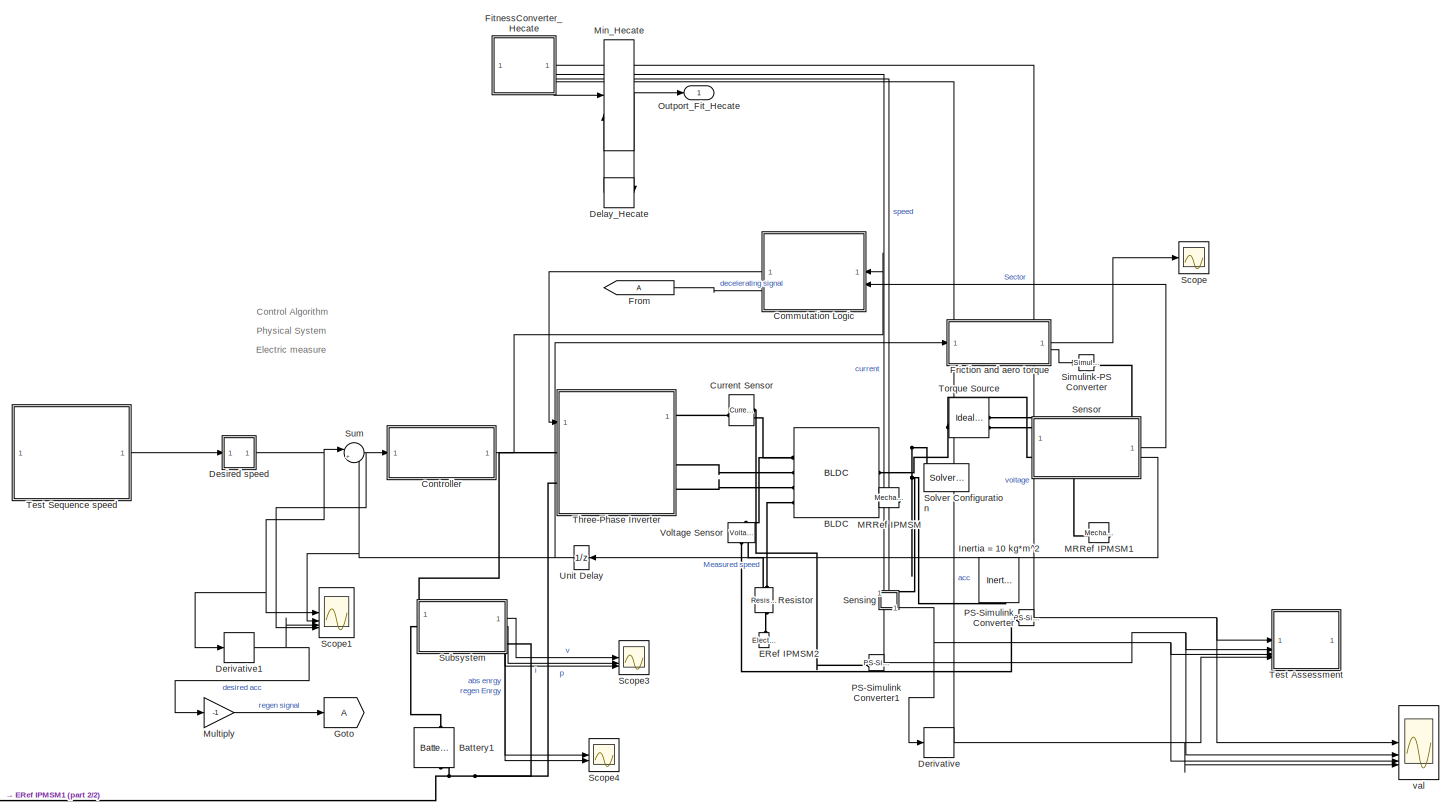
[diagram: root canvas - part 1/2, most of the canvas]
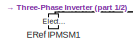
[diagram: root canvas - part 2/2, bottom left region]
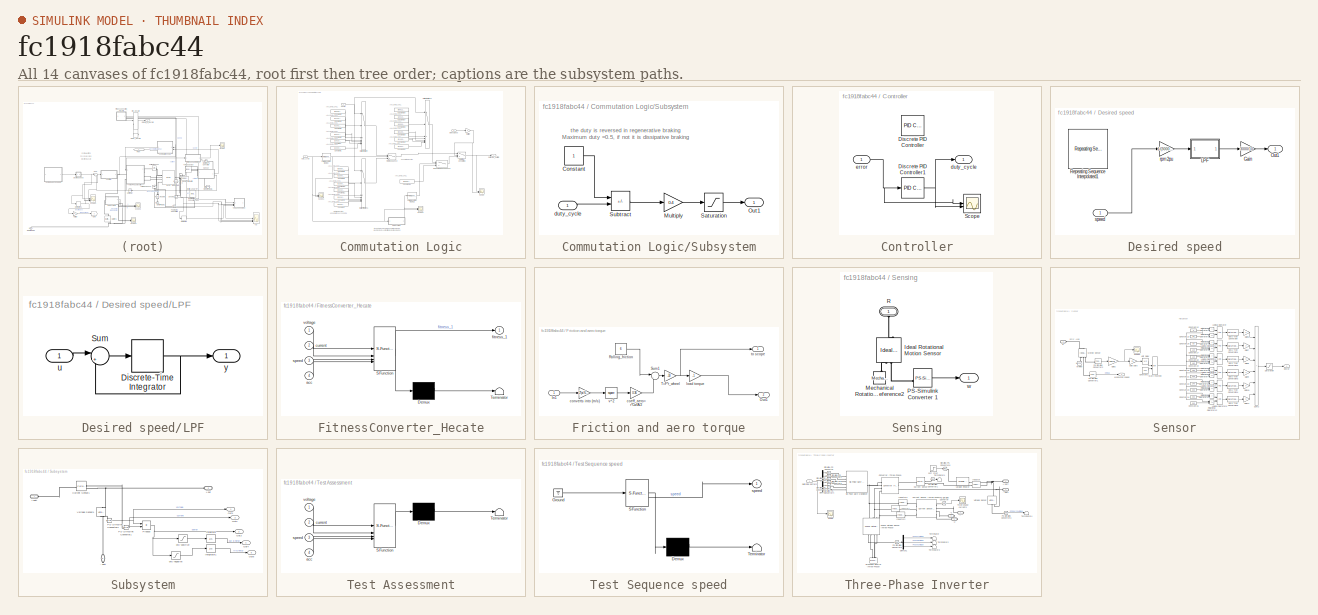
[diagram: thumbnail index - all 14 canvases of the model, root first then tree order]
MODEL slx_fc1918fabc44
KIND model
CONFIG AbsTol = auto
CONFIG EnableMultiTasking = on
CONFIG FixedStep = auto
CONFIG InitFcn = load bldcData
CONFIG MaxStep = Ts_motor
CONFIG MinStep = auto
CONFIG RelTol = 1e-3
CONFIG SampleTimeConstraint = Unconstrained
CONFIG SolverName = odeN
CONFIG StartTime = 0.0
CONFIG StopTime = 35
WORKSPACE source: mxarray member
WORKSPACE encoderResolution = 2000
WORKSPACE hallOffset = '0.5'
WORKSPACE indexOffset = 850
WORKSPACE polePairs = '4'
BLOCK [Scope]  val
  Floating = off
  NumInputPorts = 4
  ScopeSpecificationString = Simulink.scopes.TimeScopeBlockCfg('CurrentConfiguration', extmgr.ConfigurationSet(extmgr.Configuration('Core','General UI',true),extmgr.Configuration('Core','Source UI',true),extmgr.Configuration('Sources','WiredSimulink',true,'DataLoggingVariableName','ScopeData1'),extmgr.Configuration('Visuals','Time Domain',true,'SerializedDisplays',{struct('MinYLimReal','-103.91544','MaxYLimReal','203.31569','...<+1793ch>
BLOCK [Reference] BLDC  REF=ee_lib/Electromechanical/Permanent Magnet/BLDC
  SourceBlock = ee_lib/Electromechanical/Permanent Magnet/BLDC
  SourceType = BLDC
BLOCK [Reference] Battery1  REF=batteryecm_lib/Battery
  LibrarySourceBlock = ee_lib/Sources/Battery
  NameLocation = right
  SourceBlock = batteryecm_lib/Battery
  SourceType = Battery
BLOCK [SubSystem] Commutation Logic
  PortSchema = {"entries":[{"content":{"sides":[{"content":{"connectorIds":["In1","In2"]},"type":"ConnectorPlacement.EquallySpacedRectSide","uuid":"f4e15c6a-e670-49a0-969b-f2d92f91a733"},{"content":{"connectorIds":["Out1","In3"],"side":"RIGHT"},"type":"ConnectorPlacement.EquallySpacedRectSide","uuid":"8577e4eb-4aab-4b1b-b17d-15b328aa4a76"},{"content":{"side":"TOP"},"type":"ConnectorPlacement.EquallySpacedRectSid...<+234ch>
  ShowPortLabels = none
BLOCK [Outport] Commutation Logic/  switching_pattern
  VectorParamsAs1DForOutWhenUnconnected = off
BLOCK [Constant] Commutation Logic/Constant
  Value = [1 0 0 1 0 0]
BLOCK [Constant] Commutation Logic/Constant1
  Value = [1 0 0 0 0 1]
BLOCK [Constant] Commutation Logic/Constant10
  Value = [0 1 0 0 0 0]
BLOCK [Constant] Commutation Logic/Constant11
  Value = [0 0 0 1 0 0]
BLOCK [Constant] Commutation Logic/Constant18
  Value = [0 1 1 0 0 0]
BLOCK [Constant] Commutation Logic/Constant2
  Value = [0 0 1 0 0 1]
BLOCK [Constant] Commutation Logic/Constant25
  Value = [0 1 0 0 1 0]
BLOCK [Constant] Commutation Logic/Constant26
  Value = [0 0 0 1 1 0]
BLOCK [Constant] Commutation Logic/Constant27
  Value = [1 0 0 1  0 0]
BLOCK [Constant] Commutation Logic/Constant28
  Value = [1 0 0 0 0 1]
BLOCK [Constant] Commutation Logic/Constant29
  Value = [0 0 1 0 0 1]
BLOCK [Constant] Commutation Logic/Constant3
  Value = [0 0 0 1 0 0]
BLOCK [Constant] Commutation Logic/Constant34
  Value = [0 0 0 0 0 0]
BLOCK [Constant] Commutation Logic/Constant4
  Value = [0 1 1 0 0 0]
BLOCK [Constant] Commutation Logic/Constant5
  Value = [0 1 0 0 1 0]
BLOCK [Constant] Commutation Logic/Constant6
  Value = [0 0 0 1 1 0]
BLOCK [Constant] Commutation Logic/Constant7
  Value = [0 0 0 0 0 1]
BLOCK [Constant] Commutation Logic/Constant8
  Value = [0 0 0 0 0 1]
BLOCK [Constant] Commutation Logic/Constant9
  Value = [0 1 0 0 0 0]
BLOCK [Gain] Commutation Logic/Multiply
  Gain = -1
BLOCK [MultiPortSwitch] Commutation Logic/Multiport Switch
  InputSameDT = off
  Inputs = 6
  SaturateOnIntegerOverflow = off
BLOCK [MultiPortSwitch] Commutation Logic/Multiport Switch1
  InputSameDT = off
  Inputs = 6
  SaturateOnIntegerOverflow = off
BLOCK [MultiPortSwitch] Commutation Logic/Multiport Switch4
  InputSameDT = off
  Inputs = 6
  SaturateOnIntegerOverflow = off
BLOCK [Reference] Commutation Logic/PWM Generator (DC-DC)  REF=spsPWMGeneratorDCDCLib/PWM Generator
(DC-DC)
  LibrarySourceBlock = sps_lib/Power Electronics/Power Electronics Control/PWM Generator\n(DC-DC)
  SourceBlock = spsPWMGeneratorDCDCLib/PWM Generator\n(DC-DC)
  SourceType = PWM Generator (DC-DC)
BLOCK [Reference] Commutation Logic/PWM Generator (DC-DC)1  REF=spsPWMGeneratorDCDCLib/PWM Generator
(DC-DC)
  LibrarySourceBlock = sps_lib/Power Electronics/Power Electronics Control/PWM Generator\n(DC-DC)
  SourceBlock = spsPWMGeneratorDCDCLib/PWM Generator\n(DC-DC)
  SourceType = PWM Generator (DC-DC)
BLOCK [Scope] Commutation Logic/Scope
  Floating = off
  NumInputPorts = 2
  ScopeSpecificationString = Simulink.scopes.TimeScopeBlockCfg('CurrentConfiguration', extmgr.ConfigurationSet(extmgr.Configuration('Core','General UI',true),extmgr.Configuration('Core','Source UI',true),extmgr.Configuration('Sources','WiredSimulink',true,'DataLoggingVariableName','ScopeData2'),extmgr.Configuration('Visuals','Time Domain',true,'SerializedDisplays',{struct('MinYLimReal','-1.00237','MaxYLimReal','23.74188','YLa...<+1792ch>
BLOCK [Scope] Commutation Logic/Scope1
  Floating = off
  NumInputPorts = 2
  ScopeSpecificationString = Simulink.scopes.TimeScopeBlockCfg('CurrentConfiguration', extmgr.ConfigurationSet(extmgr.Configuration('Core','General UI',true),extmgr.Configuration('Core','Source UI',true),extmgr.Configuration('Sources','WiredSimulink',true,'DataLoggingVariableName','ScopeData4'),extmgr.Configuration('Visuals','Time Domain',true,'SerializedDisplays',{struct('MinYLimReal','-0.125','MaxYLimReal','1.125','YLabelRe...<+1507ch>
BLOCK [Scope] Commutation Logic/Scope2
  Floating = off
  NumInputPorts = 2
  ScopeSpecificationString = Simulink.scopes.TimeScopeBlockCfg('CurrentConfiguration', extmgr.ConfigurationSet(extmgr.Configuration('Core','General UI',true),extmgr.Configuration('Core','Source UI',true),extmgr.Configuration('Sources','WiredSimulink',true,'DataLoggingVariableName','ScopeData5'),extmgr.Configuration('Visuals','Time Domain',true,'SerializedDisplays',{struct('MinYLimReal','-0.125','MaxYLimReal','1.125','YLabelRe...<+1440ch>
BLOCK [SubSystem] Commutation Logic/Subsystem
BLOCK [Constant] Commutation Logic/Subsystem/Constant
BLOCK [Gain] Commutation Logic/Subsystem/Multiply
  Gain = 0.4
BLOCK [Outport] Commutation Logic/Subsystem/Out1
BLOCK [Saturate] Commutation Logic/Subsystem/Saturation
  LowerLimit = 0.1
BLOCK [Sum] Commutation Logic/Subsystem/Subtract
  IconShape = rectangular
  Inputs = +-
BLOCK [Inport] Commutation Logic/Subsystem/duty_cycle
BLOCK [Inport] Commutation Logic/brake signal
  Port = 3
BLOCK [Inport] Commutation Logic/duty_cycle
BLOCK [Switch] Commutation Logic/motor sequence
  Criteria = u2 > Threshold
  InputSameDT = off
  SaturateOnIntegerOverflow = off
  Threshold = 0.5
BLOCK [Switch] Commutation Logic/motoring // generating
  InputSameDT = off
  SaturateOnIntegerOverflow = off
BLOCK [Switch] Commutation Logic/regen braking sequence
  Criteria = u2 > Threshold
  InputSameDT = off
  SaturateOnIntegerOverflow = off
  Threshold = 0.5
BLOCK [Inport] Commutation Logic/sector
  NameLocation = top
  Port = 2
BLOCK [SubSystem] Controller
BLOCK [Reference] Controller/Discrete PID Controller  REF=slpidlib/PID Controller
  Commented = on
  SourceBlock = slpidlib/PID Controller
  SourceType = PID 1dof
BLOCK [Reference] Controller/Discrete PID Controller1  REF=slpidlib/PID Controller
  LibrarySourceBlock = simulink/Discrete/Discrete PID Controller
  SourceBlock = slpidlib/PID Controller
  SourceType = PID 1dof
BLOCK [Scope] Controller/Scope
  Floating = off
  NumInputPorts = 2
  ScopeSpecificationString = Simulink.scopes.TimeScopeBlockCfg('CurrentConfiguration', extmgr.ConfigurationSet(extmgr.Configuration('Core','General UI',true),extmgr.Configuration('Core','Source UI',true),extmgr.Configuration('Sources','WiredSimulink',true,'DataLoggingVariableName','ScopeData3'),extmgr.Configuration('Visuals','Time Domain',true),extmgr.Configuration('Tools','Plot Navigation',true),extmgr.Configuration('Tools',...<+40ch>
BLOCK [Outport] Controller/duty_cycle
BLOCK [Inport] Controller/error
BLOCK [Reference] Current Sensor  REF=fl_lib/Electrical/Electrical Sensors/Current Sensor
  SourceBlock = fl_lib/Electrical/Electrical Sensors/Current Sensor
  SourceType = Current Sensor
BLOCK [Delay] Delay_Hecate
  DelayLength = 1
  InitialCondition = Inf
  InputPortMap = u0
BLOCK [Derivative] Derivative
BLOCK [Derivative] Derivative1
BLOCK [SubSystem] Desired speed
  ShowPortLabels = none
BLOCK [Gain] Desired speed/Gain
  Gain = 3000/10
BLOCK [SubSystem] Desired speed/LPF
BLOCK [DiscreteIntegrator] Desired speed/LPF/Discrete-Time Integrator
  ICPrevOutput = DiscIntNeverNeededParam
  ICPrevScaledInput = DiscIntNeverNeededParam
  InitialConditionSetting = Auto
  SampleTime = Ts_motor
  gainval = 20
BLOCK [Sum] Desired speed/LPF/Sum
  Inputs = |+-
BLOCK [Inport] Desired speed/LPF/u
BLOCK [Outport] Desired speed/LPF/y
BLOCK [Outport] Desired speed/Out1
BLOCK [Reference] Desired speed/Repeating Sequence Interpolated1  REF=simulink/Sources/Repeating
Sequence
Interpolated
  SourceBlock = simulink/Sources/Repeating\nSequence\nInterpolated
  SourceType = Repeating Sequence Interpolated
BLOCK [Gain] Desired speed/rpm2pu
  Gain = 1/(3000/10)
  OutDataTypeStr = Inherit: Same as input
  RndMeth = Simplest
BLOCK [Inport] Desired speed/speed
BLOCK [Reference] ERef IPMSM1  REF=fl_lib/Electrical/Electrical Elements/Electrical Reference
  NameLocation = right
  SourceBlock = fl_lib/Electrical/Electrical Elements/Electrical Reference
  SourceType = Electrical Reference
BLOCK [Reference] ERef IPMSM2  REF=fl_lib/Electrical/Electrical Elements/Electrical Reference
  NameLocation = right
  SourceBlock = fl_lib/Electrical/Electrical Elements/Electrical Reference
  SourceType = Electrical Reference
BLOCK [SubSystem] FitnessConverter_Hecate
  ErrorFcn = Stateflow.Translate.translate
  PermitHierarchicalResolution = ExplicitOnly
  SFBlockType = Chart
  TreatAsAtomicUnit = on
BLOCK [Demux] FitnessConverter_Hecate/ Demux 
  Outputs = 1
BLOCK [S-Function] FitnessConverter_Hecate/ SFunction 
  EnableBusSupport = on
  FunctionName = sf_sfun
  Parameters = Hecate_speed
  PortCounts = [4 2]
  SFcnIsStateOwnerBlock = off
  SFunctionDeploymentMode = off
  Tag = Stateflow S-Function 3
BLOCK [Terminator] FitnessConverter_Hecate/ Terminator 
BLOCK [Inport] FitnessConverter_Hecate/acc
  Port = 4
BLOCK [Inport] FitnessConverter_Hecate/current
  Port = 2
BLOCK [Outport] FitnessConverter_Hecate/fitness_1
BLOCK [Inport] FitnessConverter_Hecate/speed
  Port = 3
BLOCK [Inport] FitnessConverter_Hecate/voltage
BLOCK [SubSystem] Friction and aero torque
BLOCK [Inport] Friction and aero torque/In1
BLOCK [Outport] Friction and aero torque/Out1
  Port = 2
BLOCK [Constant] Friction and aero torque/Rolling_friction
  Value = 6
BLOCK [Sum] Friction and aero torque/Sum1
  Inputs = |++
BLOCK [Gain] Friction and aero torque/T=F*r_wheel
  Gain = .33
BLOCK [Gain] Friction and aero torque/coeff_aero= r*Cw*A//2
  Gain = 0.36
BLOCK [Gain] Friction and aero torque/converts into (m//s)
  Gain = (2*pi/60) * 0.33
BLOCK [Gain] Friction and aero torque/load torque
  Gain = -1
BLOCK [Outport] Friction and aero torque/to scope
BLOCK [Math] Friction and aero torque/v^2
  Operator = square
BLOCK [From] From
BLOCK [Goto] Goto
BLOCK [Reference] Inertia = 10 kg*m^2  REF=fl_lib/Mechanical/Rotational Elements/Inertia
  NameLocation = right
  SourceBlock = fl_lib/Mechanical/Rotational Elements/Inertia
  SourceType = Inertia
BLOCK [Reference] MRRef IPMSM  REF=fl_lib/Mechanical/Rotational Elements/Mechanical
Rotational Reference
  NameLocation = top
  SourceBlock = fl_lib/Mechanical/Rotational Elements/Mechanical\nRotational Reference
  SourceType = Mechanical\nRotational Reference
BLOCK [Reference] MRRef IPMSM1  REF=fl_lib/Mechanical/Rotational Elements/Mechanical
Rotational Reference
  NameLocation = top
  SourceBlock = fl_lib/Mechanical/Rotational Elements/Mechanical\nRotational Reference
  SourceType = Mechanical\nRotational Reference
BLOCK [MinMax] Min_Hecate
  Inputs = 2
BLOCK [Gain] Multiply
  Gain = -1
BLOCK [Outport] Outport_Fit_Hecate
BLOCK [Reference] PS-Simulink Converter  REF=nesl_utility/PS-Simulink
Converter
  SourceBlock = nesl_utility/PS-Simulink\nConverter
  SourceType = PS-Simulink\nConverter
BLOCK [Reference] PS-Simulink Converter1  REF=nesl_utility/PS-Simulink
Converter
  SourceBlock = nesl_utility/PS-Simulink\nConverter
  SourceType = PS-Simulink\nConverter
BLOCK [Reference] Resistor  REF=fl_lib/Electrical/Electrical Elements/Resistor
  NameLocation = left
  SourceBlock = fl_lib/Electrical/Electrical Elements/Resistor
  SourceType = Resistor
BLOCK [Scope] Scope
  Floating = off
  NumInputPorts = 1
  ScopeSpecificationString = Simulink.scopes.TimeScopeBlockCfg('CurrentConfiguration', extmgr.ConfigurationSet(extmgr.Configuration('Core','General UI',true),extmgr.Configuration('Core','Source UI',true),extmgr.Configuration('Sources','WiredSimulink',true,'DataLoggingVariableName','ScopeData1'),extmgr.Configuration('Visuals','Time Domain',true,'SerializedDisplays',{struct('MinYLimReal','1.45173','MaxYLimReal','6.73443','YLabe...<+1502ch>
BLOCK [Scope] Scope1
  Floating = off
  NumInputPorts = 4
  ScopeSpecificationString = Simulink.scopes.TimeScopeBlockCfg('CurrentConfiguration', extmgr.ConfigurationSet(extmgr.Configuration('Core','General UI',true),extmgr.Configuration('Core','Source UI',true),extmgr.Configuration('Sources','WiredSimulink',true,'DataLoggingVariableName','ScopeData4'),extmgr.Configuration('Visuals','Time Domain',true,'SerializedDisplays',{struct('MinYLimReal','-37.22419','MaxYLimReal','232.51773','Y...<+1669ch>
BLOCK [Scope] Scope3
  Floating = off
  NumInputPorts = 3
  ScopeSpecificationString = Simulink.scopes.TimeScopeBlockCfg('CurrentConfiguration', extmgr.ConfigurationSet(extmgr.Configuration('Core','General UI',true,'FigureColor',[0 0 0]),extmgr.Configuration('Core','Source UI',true),extmgr.Configuration('Sources','WiredSimulink',true,'DataLoggingVariableName','ScopeData2'),extmgr.Configuration('Visuals','Time Domain',true,'SerializedDisplays',{struct('MinYLimReal','-97.52249','MaxYL...<+1627ch>
BLOCK [Scope] Scope4
  Floating = off
  NumInputPorts = 2
  ScopeSpecificationString = Simulink.scopes.TimeScopeBlockCfg('CurrentConfiguration', extmgr.ConfigurationSet(extmgr.Configuration('Core','General UI',true),extmgr.Configuration('Core','Source UI',true),extmgr.Configuration('Sources','WiredSimulink',true,'DataLoggingVariableName','ScopeData3'),extmgr.Configuration('Visuals','Time Domain',true,'SerializedDisplays',{struct('MinYLimReal','-3238.99196','MaxYLimReal','11958.31271...<+1484ch>
BLOCK [SubSystem] Sensing
  NameLocation = left
BLOCK [Reference] Sensing/Ideal Rotational Motion Sensor  REF=fl_lib/Mechanical/Mechanical Sensors/Ideal Rotational
Motion Sensor
  NameLocation = right
  SourceBlock = fl_lib/Mechanical/Mechanical Sensors/Ideal Rotational\nMotion Sensor
  SourceType = Ideal Rotational\nMotion Sensor
BLOCK [Reference] Sensing/Mechanical Rotational Reference2  REF=fl_lib/Mechanical/Rotational Elements/Mechanical
Rotational Reference
  NameLocation = left
  SourceBlock = fl_lib/Mechanical/Rotational Elements/Mechanical\nRotational Reference
  SourceType = Mechanical\nRotational Reference
BLOCK [Reference] Sensing/PS-Simulink Converter 1  REF=nesl_utility/PS-Simulink
Converter
  SourceBlock = nesl_utility/PS-Simulink\nConverter
  SourceType = PS-Simulink\nConverter
BLOCK [PMIOPort] Sensing/R
  NameLocation = right
  Side = Left
BLOCK [Outport] Sensing/w
  VectorParamsAs1DForOutWhenUnconnected = off
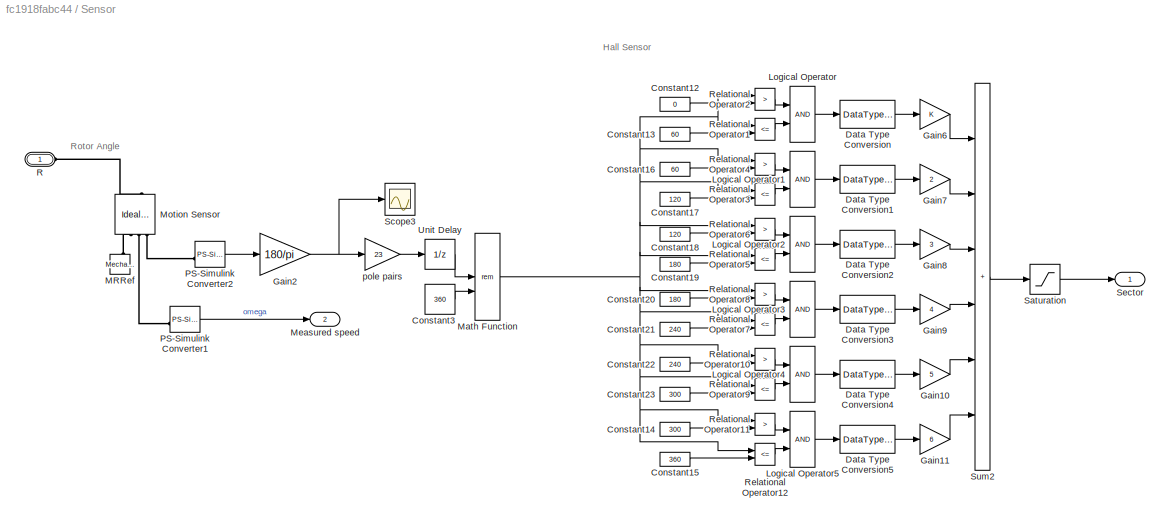
BLOCK [SubSystem] Sensor
BLOCK [Constant] Sensor/Constant12
  Value = 0
BLOCK [Constant] Sensor/Constant13
  Value = 60
BLOCK [Constant] Sensor/Constant14
  Value = 300
BLOCK [Constant] Sensor/Constant15
  Value = 360
BLOCK [Constant] Sensor/Constant16
  Value = 60
BLOCK [Constant] Sensor/Constant17
  Value = 120
BLOCK [Constant] Sensor/Constant18
  Value = 120
BLOCK [Constant] Sensor/Constant19
  Value = 180
BLOCK [Constant] Sensor/Constant20
  Value = 180
BLOCK [Constant] Sensor/Constant21
  Value = 240
BLOCK [Constant] Sensor/Constant22
  Value = 240
BLOCK [Constant] Sensor/Constant23
  Value = 300
BLOCK [Constant] Sensor/Constant3
  Value = 360
BLOCK [DataTypeConversion] Sensor/Data Type Conversion
BLOCK [DataTypeConversion] Sensor/Data Type Conversion1
BLOCK [DataTypeConversion] Sensor/Data Type Conversion2
BLOCK [DataTypeConversion] Sensor/Data Type Conversion3
BLOCK [DataTypeConversion] Sensor/Data Type Conversion4
BLOCK [DataTypeConversion] Sensor/Data Type Conversion5
BLOCK [Gain] Sensor/Gain10
  Gain = 5
  OutDataTypeStr = Inherit: Same as input
  ParamDataTypeStr = Inherit: Same as input
  SaturateOnIntegerOverflow = on
BLOCK [Gain] Sensor/Gain11
  Gain = 6
  OutDataTypeStr = Inherit: Same as input
  ParamDataTypeStr = Inherit: Same as input
  SaturateOnIntegerOverflow = on
BLOCK [Gain] Sensor/Gain2
  Gain = 180/pi
BLOCK [Gain] Sensor/Gain6
  OutDataTypeStr = Inherit: Same as input
  ParamDataTypeStr = Inherit: Same as input
  SaturateOnIntegerOverflow = on
BLOCK [Gain] Sensor/Gain7
  Gain = 2
  OutDataTypeStr = Inherit: Same as input
  ParamDataTypeStr = Inherit: Same as input
  SaturateOnIntegerOverflow = on
BLOCK [Gain] Sensor/Gain8
  Gain = 3
  OutDataTypeStr = Inherit: Same as input
  ParamDataTypeStr = Inherit: Same as input
  SaturateOnIntegerOverflow = on
BLOCK [Gain] Sensor/Gain9
  Gain = 4
  OutDataTypeStr = Inherit: Same as input
  ParamDataTypeStr = Inherit: Same as input
  SaturateOnIntegerOverflow = on
BLOCK [Logic] Sensor/Logical Operator
BLOCK [Logic] Sensor/Logical Operator1
BLOCK [Logic] Sensor/Logical Operator2
BLOCK [Logic] Sensor/Logical Operator3
BLOCK [Logic] Sensor/Logical Operator4
BLOCK [Logic] Sensor/Logical Operator5
BLOCK [Reference] Sensor/MRRef  REF=fl_lib/Mechanical/Rotational Elements/Mechanical
Rotational Reference
  NameLocation = left
  SourceBlock = fl_lib/Mechanical/Rotational Elements/Mechanical\nRotational Reference
  SourceType = Mechanical\nRotational Reference
BLOCK [Math] Sensor/Math Function
  Operator = rem
  SignedPower = on
BLOCK [Outport] Sensor/Measured speed
  Port = 2
BLOCK [Reference] Sensor/Motion Sensor  REF=fl_lib/Mechanical/Mechanical Sensors/Ideal Rotational
Motion Sensor
  NameLocation = right
  SourceBlock = fl_lib/Mechanical/Mechanical Sensors/Ideal Rotational\nMotion Sensor
  SourceType = Ideal Rotational\nMotion Sensor
BLOCK [Reference] Sensor/PS-Simulink Converter1  REF=nesl_utility/PS-Simulink
Converter
  SourceBlock = nesl_utility/PS-Simulink\nConverter
  SourceType = PS-Simulink\nConverter
BLOCK [Reference] Sensor/PS-Simulink Converter2  REF=nesl_utility/PS-Simulink
Converter
  SourceBlock = nesl_utility/PS-Simulink\nConverter
  SourceType = PS-Simulink\nConverter
BLOCK [PMIOPort] Sensor/R
  NameLocation = top
  Side = Left
BLOCK [RelationalOperator] Sensor/Relational Operator1
  Operator = <=
BLOCK [RelationalOperator] Sensor/Relational Operator10
  Operator = >
BLOCK [RelationalOperator] Sensor/Relational Operator11
  Operator = >
BLOCK [RelationalOperator] Sensor/Relational Operator12
  Operator = <=
BLOCK [RelationalOperator] Sensor/Relational Operator2
  Operator = >
BLOCK [RelationalOperator] Sensor/Relational Operator3
  Operator = <=
BLOCK [RelationalOperator] Sensor/Relational Operator4
  Operator = >
BLOCK [RelationalOperator] Sensor/Relational Operator5
  Operator = <=
BLOCK [RelationalOperator] Sensor/Relational Operator6
  Operator = >
BLOCK [RelationalOperator] Sensor/Relational Operator7
  Operator = <=
BLOCK [RelationalOperator] Sensor/Relational Operator8
  Operator = >
BLOCK [RelationalOperator] Sensor/Relational Operator9
  Operator = <=
BLOCK [Saturate] Sensor/Saturation
  LowerLimit = 1
  UpperLimit = 6
BLOCK [Scope] Sensor/Scope3
  Floating = off
  NumInputPorts = 1
  ScopeSpecificationString = Simulink.scopes.TimeScopeBlockCfg('CurrentConfiguration', extmgr.ConfigurationSet(extmgr.Configuration('Core','General UI',true),extmgr.Configuration('Core','Source UI',true),extmgr.Configuration('Sources','WiredSimulink',true,'DataLoggingVariableName','ScopeData1','DataLogging',true,'DataLoggingSaveFormat','StructureWithTime'),extmgr.Configuration('Visuals','Time Domain',true,'SerializedDisplays'...<+1517ch>
BLOCK [Outport] Sensor/Sector
  NameLocation = top
BLOCK [Sum] Sensor/Sum2
  IconShape = rectangular
  InputSameDT = on
  Inputs = ++++++
  OutDataTypeStr = Inherit: Same as first input
  SaturateOnIntegerOverflow = on
BLOCK [UnitDelay] Sensor/Unit Delay
  HasFrameUpgradeWarning = on
  SampleTime = Ts_motor
BLOCK [Gain] Sensor/pole pairs
  Gain = 23
  NameLocation = top
BLOCK [Reference] Simulink-PS Converter  REF=nesl_utility/Simulink-PS
Converter
  SourceBlock = nesl_utility/Simulink-PS\nConverter
  SourceType = Simulink-PS\nConverter
BLOCK [Reference] Solver Configuration  REF=nesl_utility/Solver
Configuration
  NameLocation = top
  SourceBlock = nesl_utility/Solver\nConfiguration
  SourceType = Solver\nConfiguration
BLOCK [SubSystem] Subsystem
  PortSchema = {"entries":[{"content":{"sides":[{"content":{"connectorIds":["LConn1"]},"type":"ConnectorPlacement.EquallySpacedRectSide","uuid":"3ab4d702-4c5f-4315-88cb-d9b09461253d"},{"content":{"connectorIds":["Out1","Out2","Out3"],"side":"RIGHT"},"type":"ConnectorPlacement.EquallySpacedRectSide","uuid":"0c919373-9c62-454a-be79-41a01ae39402"},{"content":{"connectorIds":["LConn2"],"side":"TOP"},"type":"Connecto...<+431ch>
BLOCK [PMIOPort] Subsystem/+ batt
  Side = Left
BLOCK [PMIOPort] Subsystem/+ out
  Port = 2
  Side = Left
BLOCK [PMIOPort] Subsystem/- batt
  NameLocation = right
  Port = 3
  Side = Right
BLOCK [Reference] Subsystem/Current Sensor1  REF=fl_lib/Electrical/Electrical Sensors/Current Sensor
  SourceBlock = fl_lib/Electrical/Electrical Sensors/Current Sensor
  SourceType = Current Sensor
BLOCK [Integrator] Subsystem/Integrator
BLOCK [Integrator] Subsystem/Integrator1
BLOCK [Outport] Subsystem/Out1
BLOCK [Outport] Subsystem/Out2
  Port = 2
BLOCK [Outport] Subsystem/Out3
  Port = 3
BLOCK [Outport] Subsystem/Out4
  Port = 4
BLOCK [Outport] Subsystem/Out5
  Port = 5
BLOCK [Reference] Subsystem/PS-Simulink Converter1  REF=nesl_utility/PS-Simulink
Converter
  SourceBlock = nesl_utility/PS-Simulink\nConverter
  SourceType = PS-Simulink\nConverter
BLOCK [Reference] Subsystem/PS-Simulink Converter2  REF=nesl_utility/PS-Simulink
Converter
  SourceBlock = nesl_utility/PS-Simulink\nConverter
  SourceType = PS-Simulink\nConverter
BLOCK [Product] Subsystem/Product
BLOCK [Reference] Subsystem/Voltage Sensor1  REF=fl_lib/Electrical/Electrical Sensors/Voltage Sensor
  NameLocation = right
  SourceBlock = fl_lib/Electrical/Electrical Sensors/Voltage Sensor
  SourceType = Voltage Sensor
BLOCK [Saturate] Subsystem/only negative
  LowerLimit = -inf
  UpperLimit = 0
BLOCK [Saturate] Subsystem/only positive
  LowerLimit = 0
  UpperLimit = inf
BLOCK [Sum] Sum
  Inputs = |+-
BLOCK [SubSystem] Test Assessment
  ErrorFcn = Stateflow.Translate.translate
  PermitHierarchicalResolution = ExplicitOnly
  SFBlockType = Test Sequence
  TreatAsAtomicUnit = on
BLOCK [Demux] Test Assessment/ Demux 
  Outputs = 1
BLOCK [S-Function] Test Assessment/ SFunction 
  EnableBusSupport = on
  FunctionName = sf_sfun
  Parameters = 1,Hecate_speed
  PortCounts = [4 1]
  SFcnIsStateOwnerBlock = off
  SFunctionDeploymentMode = off
  Tag = Stateflow S-Function 5
BLOCK [Terminator] Test Assessment/ Terminator 
BLOCK [Inport] Test Assessment/acc
  Port = 4
BLOCK [Inport] Test Assessment/current
  Port = 2
BLOCK [Inport] Test Assessment/speed
  Port = 3
BLOCK [Inport] Test Assessment/voltage
BLOCK [SubSystem] Test Sequence speed
  ErrorFcn = Stateflow.Translate.translate
  PermitHierarchicalResolution = ExplicitOnly
  SFBlockType = Test Sequence
  TreatAsAtomicUnit = on
BLOCK [Demux] Test Sequence speed/ Demux 
  Outputs = 1
BLOCK [Ground] Test Sequence speed/ Ground 
BLOCK [S-Function] Test Sequence speed/ SFunction 
  EnableBusSupport = on
  FunctionName = sf_sfun
  Parameters = 1,Hecate_speed
  PortCounts = [1 2]
  SFcnIsStateOwnerBlock = off
  SFunctionDeploymentMode = off
  Tag = Stateflow S-Function 2
BLOCK [Terminator] Test Sequence speed/ Terminator 
BLOCK [Outport] Test Sequence speed/speed
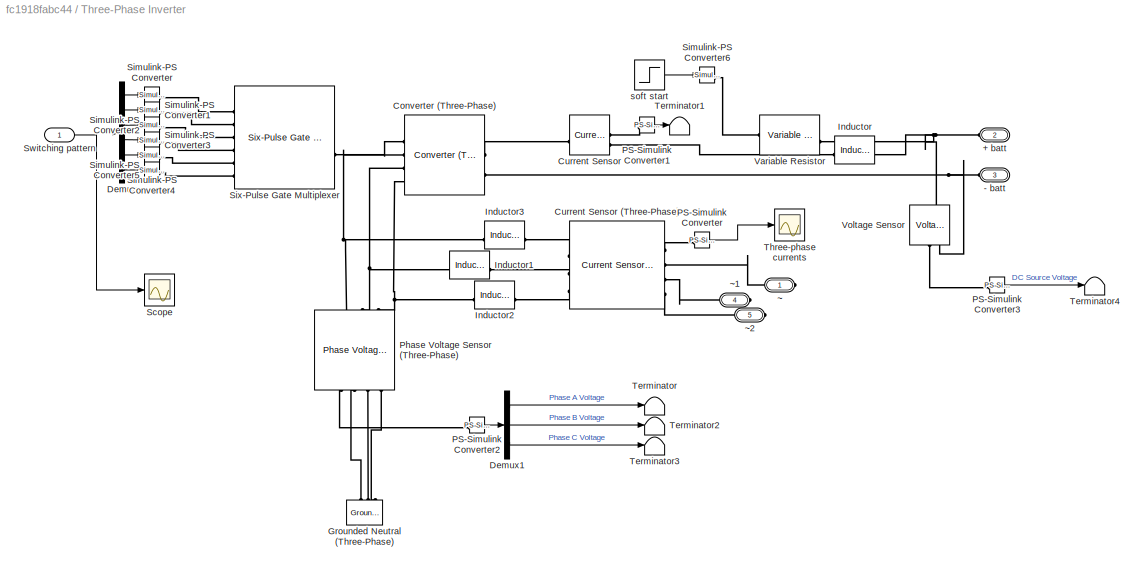
BLOCK [SubSystem] Three-Phase Inverter
BLOCK [PMIOPort] Three-Phase Inverter/+ batt
  NameLocation = top
  Port = 2
  Side = Left
BLOCK [PMIOPort] Three-Phase Inverter/- batt
  NameLocation = top
  Port = 3
  Side = Left
BLOCK [Reference] Three-Phase Inverter/Converter (Three-Phase)  REF=ee_lib/Semiconductors &
Converters/Converters/Converter
(Three-Phase)
  SourceBlock = ee_lib/Semiconductors &\nConverters/Converters/Converter\n(Three-Phase)
  SourceType = Converter\n(Three-Phase)
BLOCK [Reference] Three-Phase Inverter/Current Sensor  REF=fl_lib/Electrical/Electrical Sensors/Current Sensor
  SourceBlock = fl_lib/Electrical/Electrical Sensors/Current Sensor
  SourceType = Current Sensor
BLOCK [Reference] Three-Phase Inverter/Current Sensor (Three-Phase)  REF=ee_lib/Sensors &
Transducers/Current Sensor
(Three-Phase)
  SourceBlock = ee_lib/Sensors &\nTransducers/Current Sensor\n(Three-Phase)
  SourceType = Current Sensor\n(Three-Phase)
BLOCK [Demux] Three-Phase Inverter/Demux
  Outputs = 6
BLOCK [Demux] Three-Phase Inverter/Demux1
  Outputs = 3
BLOCK [Reference] Three-Phase Inverter/Grounded Neutral (Three-Phase)  REF=ee_lib/Connectors &
References/Grounded Neutral
(Three-Phase)
  NameLocation = right
  SourceBlock = ee_lib/Connectors &\nReferences/Grounded Neutral\n(Three-Phase)
  SourceType = Grounded Neutral\n(Three-Phase)
BLOCK [Reference] Three-Phase Inverter/Inductor  REF=ee_lib/Passive/Inductor
  SourceBlock = ee_lib/Passive/Inductor
  SourceType = Inductor
BLOCK [Reference] Three-Phase Inverter/Inductor1  REF=ee_lib/Passive/Inductor
  SourceBlock = ee_lib/Passive/Inductor
  SourceType = Inductor
BLOCK [Reference] Three-Phase Inverter/Inductor2  REF=ee_lib/Passive/Inductor
  SourceBlock = ee_lib/Passive/Inductor
  SourceType = Inductor
BLOCK [Reference] Three-Phase Inverter/Inductor3  REF=ee_lib/Passive/Inductor
  SourceBlock = ee_lib/Passive/Inductor
  SourceType = Inductor
BLOCK [Reference] Three-Phase Inverter/PS-Simulink Converter  REF=nesl_utility/PS-Simulink
Converter
  SourceBlock = nesl_utility/PS-Simulink\nConverter
  SourceType = PS-Simulink\nConverter
BLOCK [Reference] Three-Phase Inverter/PS-Simulink Converter1  REF=nesl_utility/PS-Simulink
Converter
  SourceBlock = nesl_utility/PS-Simulink\nConverter
  SourceType = PS-Simulink\nConverter
BLOCK [Reference] Three-Phase Inverter/PS-Simulink Converter2  REF=nesl_utility/PS-Simulink
Converter
  SourceBlock = nesl_utility/PS-Simulink\nConverter
  SourceType = PS-Simulink\nConverter
BLOCK [Reference] Three-Phase Inverter/PS-Simulink Converter3  REF=nesl_utility/PS-Simulink
Converter
  SourceBlock = nesl_utility/PS-Simulink\nConverter
  SourceType = PS-Simulink\nConverter
BLOCK [Reference] Three-Phase Inverter/Phase Voltage Sensor (Three-Phase)  REF=ee_lib/Sensors &
Transducers/Phase Voltage Sensor
(Three-Phase)
  NameLocation = right
  SourceBlock = ee_lib/Sensors &\nTransducers/Phase Voltage Sensor\n(Three-Phase)
  SourceType = Phase Voltage Sensor\n(Three-Phase)
BLOCK [Scope] Three-Phase Inverter/Scope
  Floating = off
  NumInputPorts = 1
  ScopeSpecificationString = Simulink.scopes.TimeScopeBlockCfg('CurrentConfiguration', extmgr.ConfigurationSet(extmgr.Configuration('Core','General UI',true),extmgr.Configuration('Core','Source UI',true),extmgr.Configuration('Sources','WiredSimulink',true,'DataLoggingVariableName','ScopeData1'),extmgr.Configuration('Visuals','Time Domain',true,'SerializedDisplays',{struct('MinYLimReal','-0.125','MaxYLimReal','1.125','YLabelRe...<+4978ch>
BLOCK [Reference] Three-Phase Inverter/Simulink-PS Converter  REF=nesl_utility/Simulink-PS
Converter
  SourceBlock = nesl_utility/Simulink-PS\nConverter
  SourceType = Simulink-PS\nConverter
BLOCK [Reference] Three-Phase Inverter/Simulink-PS Converter1  REF=nesl_utility/Simulink-PS
Converter
  SourceBlock = nesl_utility/Simulink-PS\nConverter
  SourceType = Simulink-PS\nConverter
BLOCK [Reference] Three-Phase Inverter/Simulink-PS Converter2  REF=nesl_utility/Simulink-PS
Converter
  SourceBlock = nesl_utility/Simulink-PS\nConverter
  SourceType = Simulink-PS\nConverter
BLOCK [Reference] Three-Phase Inverter/Simulink-PS Converter3  REF=nesl_utility/Simulink-PS
Converter
  SourceBlock = nesl_utility/Simulink-PS\nConverter
  SourceType = Simulink-PS\nConverter
BLOCK [Reference] Three-Phase Inverter/Simulink-PS Converter4  REF=nesl_utility/Simulink-PS
Converter
  SourceBlock = nesl_utility/Simulink-PS\nConverter
  SourceType = Simulink-PS\nConverter
BLOCK [Reference] Three-Phase Inverter/Simulink-PS Converter5  REF=nesl_utility/Simulink-PS
Converter
  SourceBlock = nesl_utility/Simulink-PS\nConverter
  SourceType = Simulink-PS\nConverter
BLOCK [Reference] Three-Phase Inverter/Simulink-PS Converter6  REF=nesl_utility/Simulink-PS
Converter
  Commented = on
  SourceBlock = nesl_utility/Simulink-PS\nConverter
  SourceType = Simulink-PS\nConverter
BLOCK [Reference] Three-Phase Inverter/Six-Pulse Gate Multiplexer  REF=ee_lib/Semiconductors &
Converters/Converters/Six-Pulse Gate
Multiplexer
  SourceBlock = ee_lib/Semiconductors &\nConverters/Converters/Six-Pulse Gate\nMultiplexer
  SourceType = Six-Pulse Gate\nMultiplexer
BLOCK [Inport] Three-Phase Inverter/Switching pattern
BLOCK [Terminator] Three-Phase Inverter/Terminator
BLOCK [Terminator] Three-Phase Inverter/Terminator1
BLOCK [Terminator] Three-Phase Inverter/Terminator2
BLOCK [Terminator] Three-Phase Inverter/Terminator3
BLOCK [Terminator] Three-Phase Inverter/Terminator4
BLOCK [Scope] Three-Phase Inverter/Three-phase currents
  Floating = off
  NumInputPorts = 1
  ScopeSpecificationString = Simulink.scopes.TimeScopeBlockCfg('CurrentConfiguration', extmgr.ConfigurationSet(extmgr.Configuration('Core','General UI',true),extmgr.Configuration('Core','Source UI',true),extmgr.Configuration('Sources','WiredSimulink',true,'DataLoggingVariableName','ScopeData1'),extmgr.Configuration('Visuals','Time Domain',true,'SerializedDisplays',{struct('MinYLimReal','-1736.84747','MaxYLimReal','1736.8562',...<+1481ch>
BLOCK [Reference] Three-Phase Inverter/Variable Resistor  REF=fl_lib/Electrical/Electrical Elements/Variable Resistor
  Commented = on
  SourceBlock = fl_lib/Electrical/Electrical Elements/Variable Resistor
  SourceType = Variable Resistor
BLOCK [Reference] Three-Phase Inverter/Voltage Sensor  REF=fl_lib/Electrical/Electrical Sensors/Voltage Sensor
  NameLocation = right
  SourceBlock = fl_lib/Electrical/Electrical Sensors/Voltage Sensor
  SourceType = Voltage Sensor
BLOCK [Step] Three-Phase Inverter/soft start
  After = 1e-3
  Before = 0.5
  Commented = on
  SampleTime = Ts_motor
  Time = 4
BLOCK [PMIOPort] Three-Phase Inverter/~
  Side = Right
BLOCK [PMIOPort] Three-Phase Inverter/~1
  Port = 4
  Side = Right
BLOCK [PMIOPort] Three-Phase Inverter/~2
  Port = 5
  Side = Right
BLOCK [Reference] Torque Source  REF=fl_lib/Mechanical/Mechanical Sources/Ideal Torque Source
  SourceBlock = fl_lib/Mechanical/Mechanical Sources/Ideal Torque Source
  SourceType = Ideal Torque Source
BLOCK [UnitDelay] Unit Delay
  HasFrameUpgradeWarning = on
  SampleTime = -1
BLOCK [Reference] Voltage Sensor  REF=fl_lib/Electrical/Electrical Sensors/Voltage Sensor
  NameLocation = right
  SourceBlock = fl_lib/Electrical/Electrical Sensors/Voltage Sensor
  SourceType = Voltage Sensor
ANNOTATION (root): Electric measure
ANNOTATION (root): Control Algorithm
ANNOTATION (root): Physical System
ANNOTATION Commutation Logic: generating function
ANNOTATION Commutation Logic: motoring function upper switches chopping
ANNOTATION Commutation Logic: the duty is reversed in regenerative braking Maximum duty =0.5, if not it is dissipative braking
ANNOTATION Commutation Logic: AH AL BH BL CH CL
ANNOTATION Commutation Logic/Subsystem: the duty is reversed in regenerative braking Maximum duty =0.5, if not it is dissipative braking
ANNOTATION Sensor: Hall Sensor
ANNOTATION Sensor: Rotor Angle
LINE Commutation Logic/Constant10:1 -> Commutation Logic/Multiport Switch1:4
LINE Commutation Logic/Constant11:1 -> Commutation Logic/Multiport Switch1:5
LINE Commutation Logic/Constant18:1 -> Commutation Logic/Multiport Switch4:6
LINE Commutation Logic/Constant1:1 -> Commutation Logic/Multiport Switch:7
LINE Commutation Logic/Constant25:1 -> Commutation Logic/Multiport Switch4:7
LINE Commutation Logic/Constant26:1 -> Commutation Logic/Multiport Switch4:2
LINE Commutation Logic/Constant27:1 -> Commutation Logic/Multiport Switch4:3
LINE Commutation Logic/Constant28:1 -> Commutation Logic/Multiport Switch4:4
LINE Commutation Logic/Constant29:1 -> Commutation Logic/Multiport Switch4:5
LINE Commutation Logic/Constant2:1 -> Commutation Logic/Multiport Switch:2
LINE Commutation Logic/Constant34:1 -> Commutation Logic/regen braking sequence:3
LINE Commutation Logic/Constant3:1 -> Commutation Logic/Multiport Switch1:6
LINE Commutation Logic/Constant4:1 -> Commutation Logic/Multiport Switch:3
LINE Commutation Logic/Constant5:1 -> Commutation Logic/Multiport Switch:4
LINE Commutation Logic/Constant6:1 -> Commutation Logic/Multiport Switch:5
LINE Commutation Logic/Constant7:1 -> Commutation Logic/Multiport Switch1:7
LINE Commutation Logic/Constant8:1 -> Commutation Logic/Multiport Switch1:2
LINE Commutation Logic/Constant9:1 -> Commutation Logic/Multiport Switch1:3
LINE Commutation Logic/Constant:1 -> Commutation Logic/Multiport Switch:6
NET Commutation Logic/Multiply:1 -> Commutation Logic/Scope:2, Commutation Logic/motoring // generating:2
LINE Commutation Logic/Multiport Switch1:1 -> Commutation Logic/motor sequence:3
LINE Commutation Logic/Multiport Switch4:1 -> Commutation Logic/regen braking sequence:1
LINE Commutation Logic/Multiport Switch:1 -> Commutation Logic/motor sequence:1
LINE Commutation Logic/PWM Generator (DC-DC)1:1 -> Commutation Logic/regen braking sequence:2
NET Commutation Logic/PWM Generator (DC-DC):1 -> Commutation Logic/Scope1:2, Commutation Logic/motor sequence:2
LINE Commutation Logic/Subsystem/Constant:1 -> Commutation Logic/Subsystem/Subtract:1
LINE Commutation Logic/Subsystem/Multiply:1 -> Commutation Logic/Subsystem/Saturation:1
LINE Commutation Logic/Subsystem/Saturation:1 -> Commutation Logic/Subsystem/Out1:1
LINE Commutation Logic/Subsystem/Subtract:1 -> Commutation Logic/Subsystem/Multiply:1
LINE Commutation Logic/Subsystem/duty_cycle:1 -> Commutation Logic/Subsystem/Subtract:2
NET Commutation Logic/Subsystem:1 -> Commutation Logic/PWM Generator (DC-DC)1:1, Commutation Logic/Scope2:1
LINE Commutation Logic/brake signal:1 -> Commutation Logic/Multiply:1
NET Commutation Logic/duty_cycle:1 -> Commutation Logic/PWM Generator (DC-DC):1, Commutation Logic/Scope1:1, Commutation Logic/Scope2:2, Commutation Logic/Subsystem:1
LINE Commutation Logic/motor sequence:1 -> Commutation Logic/motoring // generating:1
NET Commutation Logic/motoring // generating:1 -> Commutation Logic/  switching_pattern:1, Commutation Logic/Scope:1
LINE Commutation Logic/regen braking sequence:1 -> Commutation Logic/motoring // generating:3
NET Commutation Logic/sector:1 -> Commutation Logic/Multiport Switch1:1, Commutation Logic/Multiport Switch4:1, Commutation Logic/Multiport Switch:1
LINE Commutation Logic:1 -> Three-Phase Inverter:1
NET Controller/Discrete PID Controller1:1 -> Controller/Scope:2, Controller/duty_cycle:1
NET Controller/error:1 -> Controller/Discrete PID Controller1:1, Controller/Scope:1
LINE Controller:1 -> Commutation Logic:1
LINE Delay_Hecate:1 -> Min_Hecate:2
NET Derivative1:1 -> Multiply:1, Scope1:3
NET Derivative:1 ->  val:4, FitnessConverter_Hecate:4, Test Assessment:4
LINE Desired speed/Gain:1 -> Desired speed/Out1:1
NET Desired speed/LPF/Discrete-Time Integrator:1 -> Desired speed/LPF/Sum:2, Desired speed/LPF/y:1
LINE Desired speed/LPF/Sum:1 -> Desired speed/LPF/Discrete-Time Integrator:1
LINE Desired speed/LPF/u:1 -> Desired speed/LPF/Sum:1
LINE Desired speed/LPF:1 -> Desired speed/Gain:1
LINE Desired speed/rpm2pu:1 -> Desired speed/LPF:1
LINE Desired speed/speed:1 -> Desired speed/rpm2pu:1
NET Desired speed:1 -> Derivative1:1, Scope1:1, Sum:1
LINE FitnessConverter_Hecate:1 -> Min_Hecate:1
LINE Friction and aero torque/In1:1 -> Friction and aero torque/converts into (m//s):1
LINE Friction and aero torque/Rolling_friction:1 -> Friction and aero torque/Sum1:1
LINE Friction and aero torque/Sum1:1 -> Friction and aero torque/T=F*r_wheel:1
NET Friction and aero torque/T=F*r_wheel:1 -> Friction and aero torque/load torque:1, Friction and aero torque/to scope:1
LINE Friction and aero torque/coeff_aero= r*Cw*A//2:1 -> Friction and aero torque/Sum1:2
LINE Friction and aero torque/converts into (m//s):1 -> Friction and aero torque/v^2:1
LINE Friction and aero torque/load torque:1 -> Friction and aero torque/Out1:1
LINE Friction and aero torque/v^2:1 -> Friction and aero torque/coeff_aero= r*Cw*A//2:1
LINE Friction and aero torque:1 -> Scope:1
LINE Friction and aero torque:2 -> Simulink-PS Converter:1
LINE From:1 -> Commutation Logic:3
NET Min_Hecate:1 -> Delay_Hecate:1, Outport_Fit_Hecate:1
LINE Multiply:1 -> Goto:1
NET PS-Simulink Converter1:1 ->  val:2, FitnessConverter_Hecate:2, Test Assessment:2
NET PS-Simulink Converter:1 ->  val:1, FitnessConverter_Hecate:1, Test Assessment:1
LINE Sensing/PS-Simulink Converter 1:1 -> Sensing/w:1
NET Sensing:1 ->  val:3, Derivative:1, FitnessConverter_Hecate:3, Test Assessment:3
LINE Sensor/Constant12:1 -> Sensor/Relational Operator2:2
LINE Sensor/Constant13:1 -> Sensor/Relational Operator1:2
LINE Sensor/Constant14:1 -> Sensor/Relational Operator11:2
LINE Sensor/Constant15:1 -> Sensor/Relational Operator12:2
LINE Sensor/Constant16:1 -> Sensor/Relational Operator4:2
LINE Sensor/Constant17:1 -> Sensor/Relational Operator3:2
LINE Sensor/Constant18:1 -> Sensor/Relational Operator6:2
LINE Sensor/Constant19:1 -> Sensor/Relational Operator5:2
LINE Sensor/Constant20:1 -> Sensor/Relational Operator8:2
LINE Sensor/Constant21:1 -> Sensor/Relational Operator7:2
LINE Sensor/Constant22:1 -> Sensor/Relational Operator10:2
LINE Sensor/Constant23:1 -> Sensor/Relational Operator9:2
LINE Sensor/Constant3:1 -> Sensor/Math Function:2
LINE Sensor/Data Type Conversion1:1 -> Sensor/Gain7:1
LINE Sensor/Data Type Conversion2:1 -> Sensor/Gain8:1
LINE Sensor/Data Type Conversion3:1 -> Sensor/Gain9:1
LINE Sensor/Data Type Conversion4:1 -> Sensor/Gain10:1
LINE Sensor/Data Type Conversion5:1 -> Sensor/Gain11:1
LINE Sensor/Data Type Conversion:1 -> Sensor/Gain6:1
LINE Sensor/Gain10:1 -> Sensor/Sum2:5
LINE Sensor/Gain11:1 -> Sensor/Sum2:6
NET Sensor/Gain2:1 -> Sensor/Scope3:1, Sensor/pole pairs:1
LINE Sensor/Gain6:1 -> Sensor/Sum2:1
LINE Sensor/Gain7:1 -> Sensor/Sum2:2
LINE Sensor/Gain8:1 -> Sensor/Sum2:3
LINE Sensor/Gain9:1 -> Sensor/Sum2:4
LINE Sensor/Logical Operator1:1 -> Sensor/Data Type Conversion1:1
LINE Sensor/Logical Operator2:1 -> Sensor/Data Type Conversion2:1
LINE Sensor/Logical Operator3:1 -> Sensor/Data Type Conversion3:1
LINE Sensor/Logical Operator4:1 -> Sensor/Data Type Conversion4:1
LINE Sensor/Logical Operator5:1 -> Sensor/Data Type Conversion5:1
LINE Sensor/Logical Operator:1 -> Sensor/Data Type Conversion:1
NET Sensor/Math Function:1 -> Sensor/Relational Operator10:1, Sensor/Relational Operator11:1, Sensor/Relational Operator12:1, Sensor/Relational Operator1:1, Sensor/Relational Operator2:1, Sensor/Relational Operator3:1, Sensor/Relational Operator4:1, Sensor/Relational Operator5:1, Sensor/Relational Operator6:1, Sensor/Relational Operator7:1, Sensor/Relational Operator8:1, Sensor/Relational Operator9:1
LINE Sensor/PS-Simulink Converter1:1 -> Sensor/Measured speed:1
LINE Sensor/PS-Simulink Converter2:1 -> Sensor/Gain2:1
LINE Sensor/Relational Operator10:1 -> Sensor/Logical Operator4:1
LINE Sensor/Relational Operator11:1 -> Sensor/Logical Operator5:1
LINE Sensor/Relational Operator12:1 -> Sensor/Logical Operator5:2
LINE Sensor/Relational Operator1:1 -> Sensor/Logical Operator:2
LINE Sensor/Relational Operator2:1 -> Sensor/Logical Operator:1
LINE Sensor/Relational Operator3:1 -> Sensor/Logical Operator1:2
LINE Sensor/Relational Operator4:1 -> Sensor/Logical Operator1:1
LINE Sensor/Relational Operator5:1 -> Sensor/Logical Operator2:2
LINE Sensor/Relational Operator6:1 -> Sensor/Logical Operator2:1
LINE Sensor/Relational Operator7:1 -> Sensor/Logical Operator3:2
LINE Sensor/Relational Operator8:1 -> Sensor/Logical Operator3:1
LINE Sensor/Relational Operator9:1 -> Sensor/Logical Operator4:2
LINE Sensor/Saturation:1 -> Sensor/Sector:1
LINE Sensor/Sum2:1 -> Sensor/Saturation:1
LINE Sensor/Unit Delay:1 -> Sensor/Math Function:1
LINE Sensor/pole pairs:1 -> Sensor/Unit Delay:1
LINE Sensor:1 -> Commutation Logic:2
LINE Sensor:2 -> Unit Delay:1
LINE Subsystem/Integrator1:1 -> Subsystem/Out5:1
LINE Subsystem/Integrator:1 -> Subsystem/Out4:1
NET Subsystem/PS-Simulink Converter1:1 -> Subsystem/Out2:1, Subsystem/Product:2
NET Subsystem/PS-Simulink Converter2:1 -> Subsystem/Out1:1, Subsystem/Product:1
NET Subsystem/Product:1 -> Subsystem/Out3:1, Subsystem/only negative:1, Subsystem/only positive:1
LINE Subsystem/only negative:1 -> Subsystem/Integrator1:1
LINE Subsystem/only positive:1 -> Subsystem/Integrator:1
LINE Subsystem:1 -> Scope3:1
LINE Subsystem:2 -> Scope3:2
LINE Subsystem:3 -> Scope3:3
LINE Subsystem:4 -> Scope4:1
LINE Subsystem:5 -> Scope4:2
NET Sum:1 -> Controller:1, Scope1:4
LINE Test Sequence speed:1 -> Desired speed:1
LINE Three-Phase Inverter/Demux1:1 -> Three-Phase Inverter/Terminator:1
LINE Three-Phase Inverter/Demux1:2 -> Three-Phase Inverter/Terminator2:1
LINE Three-Phase Inverter/Demux1:3 -> Three-Phase Inverter/Terminator3:1
LINE Three-Phase Inverter/Demux:1 -> Three-Phase Inverter/Simulink-PS Converter:1
LINE Three-Phase Inverter/Demux:2 -> Three-Phase Inverter/Simulink-PS Converter1:1
LINE Three-Phase Inverter/Demux:3 -> Three-Phase Inverter/Simulink-PS Converter2:1
LINE Three-Phase Inverter/Demux:4 -> Three-Phase Inverter/Simulink-PS Converter3:1
LINE Three-Phase Inverter/Demux:5 -> Three-Phase Inverter/Simulink-PS Converter4:1
LINE Three-Phase Inverter/Demux:6 -> Three-Phase Inverter/Simulink-PS Converter5:1
LINE Three-Phase Inverter/PS-Simulink Converter1:1 -> Three-Phase Inverter/Terminator1:1
LINE Three-Phase Inverter/PS-Simulink Converter2:1 -> Three-Phase Inverter/Demux1:1
LINE Three-Phase Inverter/PS-Simulink Converter3:1 -> Three-Phase Inverter/Terminator4:1
LINE Three-Phase Inverter/PS-Simulink Converter:1 -> Three-Phase Inverter/Three-phase currents:1
NET Three-Phase Inverter/Switching pattern:1 -> Three-Phase Inverter/Demux:1, Three-Phase Inverter/Scope:1
LINE Three-Phase Inverter/soft start:1 -> Three-Phase Inverter/Simulink-PS Converter6:1
NET Unit Delay:1 -> Friction and aero torque:1, Scope1:2, Sum:2
PNET net1: BLDC:LConn1 -- Current Sensor:RConn2 -- Voltage Sensor:LConn1
PLINE BLDC:LConn2 -- Three-Phase Inverter:RConn2
PLINE BLDC:LConn3 -- Three-Phase Inverter:RConn3
PNET net2: BLDC:LConn4 -- Resistor:LConn1 -- Voltage Sensor:RConn2
PNET net3: BLDC:RConn1 -- Inertia = 10 kg*m^2:LConn1 -- Sensing:LConn1 -- Sensor:LConn1 -- Solver Configuration:RConn1 -- Torque Source:LConn1
PLINE BLDC:RConn2 -- MRRef IPMSM:LConn1
PLINE Battery1:LConn1 -- Subsystem:LConn1
PNET net4: Battery1:RConn1 -- ERef IPMSM1:LConn1 -- Subsystem:RConn1 -- Three-Phase Inverter:LConn2
PLINE Current Sensor:LConn1 -- Three-Phase Inverter:RConn1
PLINE Current Sensor:RConn1 -- PS-Simulink Converter1:LConn1
PLINE ERef IPMSM2:LConn1 -- Resistor:RConn1
PLINE MRRef IPMSM1:LConn1 -- Torque Source:RConn2
PLINE PS-Simulink Converter:LConn1 -- Voltage Sensor:RConn1
PLINE Sensing/Ideal Rotational Motion Sensor:LConn1 -- Sensing/R:RConn1
PLINE Sensing/Ideal Rotational Motion Sensor:RConn1 -- Sensing/Mechanical Rotational Reference2:LConn1
PLINE Sensing/Ideal Rotational Motion Sensor:RConn2 -- Sensing/PS-Simulink Converter 1:LConn1
PLINE Sensor/MRRef:LConn1 -- Sensor/Motion Sensor:RConn1
PLINE Sensor/Motion Sensor:LConn1 -- Sensor/R:RConn1
PLINE Sensor/Motion Sensor:RConn2 -- Sensor/PS-Simulink Converter1:LConn1
PLINE Sensor/Motion Sensor:RConn3 -- Sensor/PS-Simulink Converter2:LConn1
PLINE Simulink-PS Converter:RConn1 -- Torque Source:RConn1
PLINE Subsystem/+ batt:RConn1 -- Subsystem/Current Sensor1:LConn1
PNET net5: Subsystem/+ out:RConn1 -- Subsystem/Current Sensor1:RConn2 -- Subsystem/Voltage Sensor1:LConn1
PLINE Subsystem/- batt:RConn1 -- Subsystem/Voltage Sensor1:RConn2
PLINE Subsystem/Current Sensor1:RConn1 -- Subsystem/PS-Simulink Converter1:LConn1
PLINE Subsystem/PS-Simulink Converter2:LConn1 -- Subsystem/Voltage Sensor1:RConn1
PLINE Subsystem:LConn2 -- Three-Phase Inverter:LConn1
PNET net6: Three-Phase Inverter/+ batt:RConn1 -- Three-Phase Inverter/Inductor:RConn1 -- Three-Phase Inverter/Variable Resistor:RConn1 -- Three-Phase Inverter/Voltage Sensor:LConn1
PNET net7: Three-Phase Inverter/- batt:RConn1 -- Three-Phase Inverter/Converter (Three-Phase):RConn2 -- Three-Phase Inverter/Voltage Sensor:RConn2
PLINE Three-Phase Inverter/Converter (Three-Phase):LConn1 -- Three-Phase Inverter/Six-Pulse Gate Multiplexer:RConn1
PNET net8: Three-Phase Inverter/Converter (Three-Phase):LConn2 -- Three-Phase Inverter/Inductor3:LConn1 -- Three-Phase Inverter/Phase Voltage Sensor (Three-Phase):LConn1
PNET net9: Three-Phase Inverter/Converter (Three-Phase):LConn3 -- Three-Phase Inverter/Inductor1:LConn1 -- Three-Phase Inverter/Phase Voltage Sensor (Three-Phase):LConn2
PNET net10: Three-Phase Inverter/Converter (Three-Phase):LConn4 -- Three-Phase Inverter/Inductor2:LConn1 -- Three-Phase Inverter/Phase Voltage Sensor (Three-Phase):LConn3
PLINE Three-Phase Inverter/Converter (Three-Phase):RConn1 -- Three-Phase Inverter/Current Sensor:LConn1
PLINE Three-Phase Inverter/Current Sensor (Three-Phase):LConn1 -- Three-Phase Inverter/Inductor3:RConn1
PLINE Three-Phase Inverter/Current Sensor (Three-Phase):LConn2 -- Three-Phase Inverter/Inductor1:RConn1
PLINE Three-Phase Inverter/Current Sensor (Three-Phase):LConn3 -- Three-Phase Inverter/Inductor2:RConn1
PLINE Three-Phase Inverter/Current Sensor (Three-Phase):RConn1 -- Three-Phase Inverter/PS-Simulink Converter:LConn1
PLINE Three-Phase Inverter/Current Sensor (Three-Phase):RConn2 -- Three-Phase Inverter/~:RConn1
PLINE Three-Phase Inverter/Current Sensor (Three-Phase):RConn3 -- Three-Phase Inverter/~1:RConn1
PLINE Three-Phase Inverter/Current Sensor (Three-Phase):RConn4 -- Three-Phase Inverter/~2:RConn1
PLINE Three-Phase Inverter/Current Sensor:RConn1 -- Three-Phase Inverter/PS-Simulink Converter1:LConn1
PLINE Three-Phase Inverter/Current Sensor:RConn2 -- Three-Phase Inverter/Inductor:LConn1
PLINE Three-Phase Inverter/Grounded Neutral (Three-Phase):LConn1 -- Three-Phase Inverter/Phase Voltage Sensor (Three-Phase):RConn2
PLINE Three-Phase Inverter/Grounded Neutral (Three-Phase):LConn2 -- Three-Phase Inverter/Phase Voltage Sensor (Three-Phase):RConn3
PLINE Three-Phase Inverter/Grounded Neutral (Three-Phase):LConn3 -- Three-Phase Inverter/Phase Voltage Sensor (Three-Phase):RConn4
PLINE Three-Phase Inverter/PS-Simulink Converter2:LConn1 -- Three-Phase Inverter/Phase Voltage Sensor (Three-Phase):RConn1
PLINE Three-Phase Inverter/PS-Simulink Converter3:LConn1 -- Three-Phase Inverter/Voltage Sensor:RConn1
PLINE Three-Phase Inverter/Simulink-PS Converter1:RConn1 -- Three-Phase Inverter/Six-Pulse Gate Multiplexer:LConn2
PLINE Three-Phase Inverter/Simulink-PS Converter2:RConn1 -- Three-Phase Inverter/Six-Pulse Gate Multiplexer:LConn3
PLINE Three-Phase Inverter/Simulink-PS Converter3:RConn1 -- Three-Phase Inverter/Six-Pulse Gate Multiplexer:LConn4
PLINE Three-Phase Inverter/Simulink-PS Converter4:RConn1 -- Three-Phase Inverter/Six-Pulse Gate Multiplexer:LConn5
PLINE Three-Phase Inverter/Simulink-PS Converter5:RConn1 -- Three-Phase Inverter/Six-Pulse Gate Multiplexer:LConn6
PLINE Three-Phase Inverter/Simulink-PS Converter6:RConn1 -- Three-Phase Inverter/Variable Resistor:LConn1
PLINE Three-Phase Inverter/Simulink-PS Converter:RConn1 -- Three-Phase Inverter/Six-Pulse Gate Multiplexer:LConn1
note: NET lines group one-source signal fan-out (src -> all destinations, sorted); 1:1 wires keep LINE; PNET lines group multi-terminal physical nets as a canonical sorted terminal list (undirected conserving connections); 2-terminal nets keep the pairwise PLINE form
CHART Test Sequence speed states=33 transitions=36
  STATE_LABEL 'Grafico_Scalino_1'
  STATE_LABEL 'step_1\nspeed = 0;'
  STATE_LABEL 'step_2\nspeed = Hecate_speed;'
  STATE_LABEL "[\nafter(1,'sec')\n]"
  STATE_LABEL "[\nafter(4,'sec')\n]"
  STATE_LABEL 'step_1\nspeed = 0;'
  STATE_LABEL 'step_2\nspeed = Hecate_speed;'
  STATE_LABEL 'Grafico_Scalino_2'
  STATE_LABEL 'step_1\nspeed = 85;'
  STATE_LABEL 'step_2\nspeed = Hecate_speed;'
  STATE_LABEL "[\nafter(1,'sec')\n]"
  STATE_LABEL "[\nafter(4,'sec')\n]"
  STATE_LABEL 'step_1\nspeed = 85;'
  STATE_LABEL 'step_2\nspeed = Hecate_speed;'
  STATE_LABEL 'Grafico_Scalino_3'
  STATE_LABEL 'step_1\nspeed = 130;'
  STATE_LABEL 'step_2\nspeed = Hecate_speed;'
  STATE_LABEL "[\nafter(1,'sec')\n]"
  STATE_LABEL "[\nafter(4,'sec')\n]"
  STATE_LABEL 'step_1\nspeed = 130;'
  STATE_LABEL 'step_2\nspeed = Hecate_speed;'
  STATE_LABEL 'Grafico_DoppioTronco_1'
  STATE_LABEL 'step_1\ngetSimulationTime()\nspeed = 0 + (Hecate_speed - 0) / (5 - 0) * getSimulationTime();'
  STATE_LABEL 'step_2\nspeed = Hecate_speed;'
  STATE_LABEL 'step_3\nspeed = Hecate_speed + (0 - Hecate_speed) / (15 - 10) * (getSimulationTime - 10);'
  STATE_LABEL 'step_4\nspeed = 0;'
  STATE_LABEL 'step_5\nspeed = 0 + (Hecate_speed - 0) / (5 - 0) * (getSimulationTime() - 20);'
  STATE_LABEL 'step_6\nspeed = Hecate_speed;'
  STATE_LABEL 'step_7\nspeed = Hecate_speed + (0 - Hecate_speed) / (15 - 10) * (getSimulationTime - 30);'
  STATE_LABEL "[\nafter(5, 'sec')\n]"
  STATE_LABEL "[\nafter(5, 'sec')\n]"
  STATE_LABEL "[\nafter(5, 'sec')\n]"
  STATE_LABEL "[\nafter(5, 'sec')\n]"
  STATE_LABEL "[\nafter(5, 'sec')\n]"
  STATE_LABEL "[\nafter(5, 'sec')\n]"
  STATE_LABEL 'step_1\ngetSimulationTime()\nspeed = 0 + (Hecate_speed - 0) / (5 - 0) * getSimulationTime();'
  STATE_LABEL 'step_2\nspeed = Hecate_speed;'
  STATE_LABEL 'step_3\nspeed = Hecate_speed + (0 - Hecate_speed) / (15 - 10) * (getSimulationTime - 10);'
  STATE_LABEL 'step_4\nspeed = 0;'
  STATE_LABEL 'step_5\nspeed = 0 + (Hecate_speed - 0) / (5 - 0) * (getSimulationTime() - 20);'
CHART FitnessConverter_Hecate states=2 transitions=3
  STATE_LABEL 'step_1\nfitness_1 = Inf;\n'
  STATE_LABEL 'step_2\nfitness_1 = (Hecate_speed+1)-(speed);\n'
CHART Test Assessment states=13 transitions=17
  STATE_LABEL 'SpeedLimit_0'
  STATE_LABEL 'step_1'
  STATE_LABEL 'step_2\nverify(speed >= 0.0001);'
  STATE_LABEL "[\nafter(2, 'sec')\n]"
  STATE_LABEL 'step_1'
  STATE_LABEL 'step_2\nverify(speed >= 0.0001);'
  STATE_LABEL 'SpeedLimit_170'
  STATE_LABEL 'Speed_Hecate\nverify(speed <=  170);'
  STATE_LABEL 'Speed_Hecate\nverify(speed <=  170);'
  STATE_LABEL 'SpeedLimit_HS'
  STATE_LABEL 'step_1\n% Initial and Final Waiting Period'
  STATE_LABEL 'Speed_Hecate\nverify(speed <= (Hecate_speed + 1));'
  STATE_LABEL 'step_3\n% Midpoint Waiting Period'
  STATE_LABEL 'Speed_Hecate_1\nverify(speed <= (Hecate_speed + 1));'
  STATE_LABEL "[\nafter(6, 'sec')\n]"
  STATE_LABEL "[\nafter(4, 'sec')\n]"
  STATE_LABEL "[\nafter(16, 'sec')\n]"
  STATE_LABEL "[\nafter(4, 'sec')\n]"
  STATE_LABEL 'step_1\n% Initial and Final Waiting Period'
  STATE_LABEL 'Speed_Hecate\nverify(speed <= (Hecate_speed + 1));'
  STATE_LABEL 'step_3\n% Midpoint Waiting Period'
  STATE_LABEL 'Speed_Hecate_1\nverify(speed <= (Hecate_speed + 1));'
  STATE_LABEL 'SpeedLimit_HS_subtest'
  STATE_LABEL 'step_1'
  STATE_LABEL 'Speed_Hecate\nverify(speed <= (Hecate_speed + 1));'
  STATE_LABEL "[\nafter(26, 'sec')\n]"
  STATE_LABEL "[\nafter(4, 'sec')\n]"
  STATE_LABEL 'step_1'
  STATE_LABEL 'Speed_Hecate\nverify(speed <= (Hecate_speed + 1));'
CHART  states=0 transitions=0
CHART  states=0 transitions=0
CHART  states=0 transitions=0
